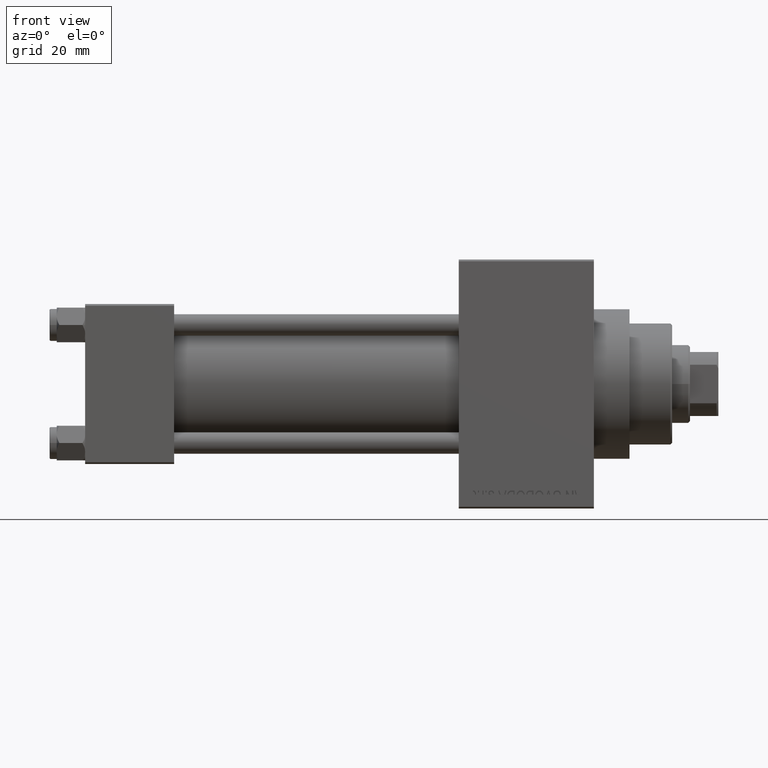
[diagram: clean part render]
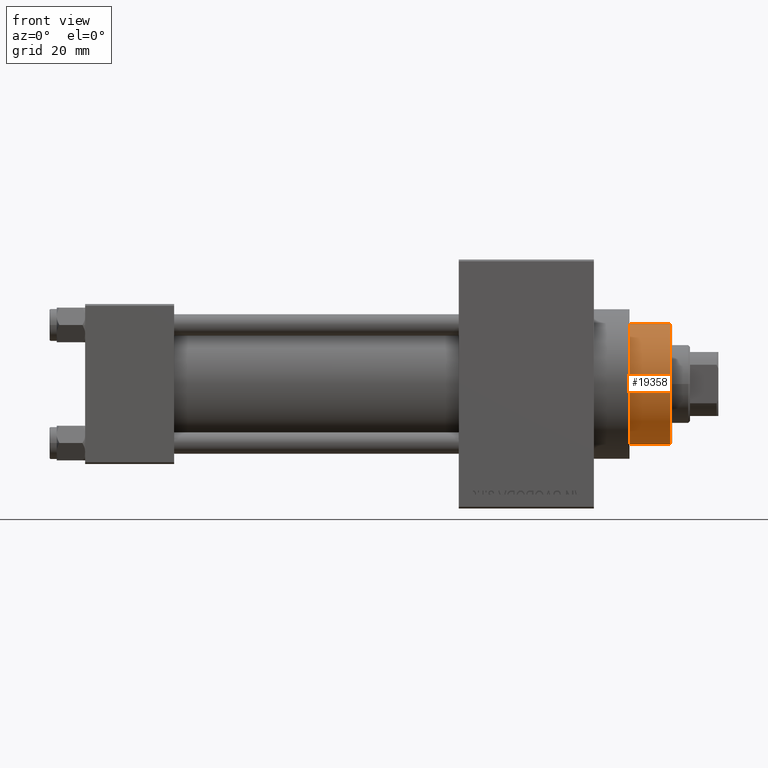
[diagram: same view with one face highlighted and labeled with its STEP entity id]
A machine part, front view. The second image highlights one B-rep face of the part: STEP entity #19358.
In plain terms, the highlighted cylindrical surface (partial cylindrical patch) has radius 17 mm, axis along (-1, 0, 0).
Its self-contained STEP definition (entity closure, byte-faithful):
#214 = AXIS2_PLACEMENT_3D ( 'NONE', #21256, #35797, #28875 ) ;
#926 = ORIENTED_EDGE ( 'NONE', *, *, #42260, .T. ) ;
#2860 = DIRECTION ( 'NONE',  ( 1.000000000000000000, 0.000000000000000000, 0.000000000000000000 ) ) ;
#7062 = EDGE_CURVE ( 'NONE', #8949, #9264, #28103, .T. ) ;
#7305 = VERTEX_POINT ( 'NONE', #31375 ) ;
#7988 = VECTOR ( 'NONE', #18783, 1000.000000000000000 ) ;
#8949 = VERTEX_POINT ( 'NONE', #24262 ) ;
#9011 = AXIS2_PLACEMENT_3D ( 'NONE', #46152, #9896, #31833 ) ;
#9264 = VERTEX_POINT ( 'NONE', #25503 ) ;
#9896 = DIRECTION ( 'NONE',  ( -0.000000000000000000, -0.000000000000000000, -1.000000000000000000 ) ) ;
#10937 = CIRCLE ( 'NONE', #21635, 17.00000000000000000 ) ;
#11688 = VECTOR ( 'NONE', #40126, 1000.000000000000000 ) ;
#12617 = CARTESIAN_POINT ( 'NONE',  ( -17.00000000000000000, 0.000000000000000000, 54.76000000000001222 ) ) ;
#15774 = VERTEX_POINT ( 'NONE', #12617 ) ;
#18068 = CARTESIAN_POINT ( 'NONE',  ( 17.00000000000000000, 2.081899558550500280E-15, 55.26000000000000512 ) ) ;
#18783 = DIRECTION ( 'NONE',  ( -0.000000000000000000, -0.000000000000000000, -1.000000000000000000 ) ) ;
#19358 = ADVANCED_FACE ( 'NONE', ( #43504 ), #31598, .T. ) ;
#21020 = CARTESIAN_POINT ( 'NONE',  ( 0.000000000000000000, 0.000000000000000000, 43.25999999999999801 ) ) ;
#21256 = CARTESIAN_POINT ( 'NONE',  ( 0.000000000000000000, 0.000000000000000000, 54.76000000000001222 ) ) ;
#21545 = ORIENTED_EDGE ( 'NONE', *, *, #43118, .F. ) ;
#21635 = AXIS2_PLACEMENT_3D ( 'NONE', #21020, #35557, #2860 ) ;
#24262 = CARTESIAN_POINT ( 'NONE',  ( 17.00000000000000000, 2.081899558550500280E-15, 54.76000000000001222 ) ) ;
#25503 = CARTESIAN_POINT ( 'NONE',  ( 17.00000000000000000, 2.081899558550500280E-15, 43.25999999999999801 ) ) ;
#25826 = CARTESIAN_POINT ( 'NONE',  ( -17.00000000000000000, 0.000000000000000000, 55.26000000000000512 ) ) ;
#28103 = LINE ( 'NONE', #18068, #7988 ) ;
#28875 = DIRECTION ( 'NONE',  ( 1.000000000000000000, 0.000000000000000000, 0.000000000000000000 ) ) ;
#29828 = EDGE_LOOP ( 'NONE', ( #926, #37442, #46993, #21545 ) ) ;
#31375 = CARTESIAN_POINT ( 'NONE',  ( -17.00000000000000000, 0.000000000000000000, 43.25999999999999801 ) ) ;
#31598 = CYLINDRICAL_SURFACE ( 'NONE', #9011, 17.00000000000000000 ) ;
#31833 = DIRECTION ( 'NONE',  ( -1.000000000000000000, 0.000000000000000000, 0.000000000000000000 ) ) ;
#35557 = DIRECTION ( 'NONE',  ( 0.000000000000000000, 0.000000000000000000, 1.000000000000000000 ) ) ;
#35797 = DIRECTION ( 'NONE',  ( 0.000000000000000000, 0.000000000000000000, -1.000000000000000000 ) ) ;
#36311 = LINE ( 'NONE', #25826, #11688 ) ;
#37442 = ORIENTED_EDGE ( 'NONE', *, *, #7062, .T. ) ;
#40126 = DIRECTION ( 'NONE',  ( -0.000000000000000000, -0.000000000000000000, -1.000000000000000000 ) ) ;
#42260 = EDGE_CURVE ( 'NONE', #15774, #8949, #45177, .T. ) ;
#43118 = EDGE_CURVE ( 'NONE', #15774, #7305, #36311, .T. ) ;
#43504 = FACE_OUTER_BOUND ( 'NONE', #29828, .T. ) ;
#44055 = EDGE_CURVE ( 'NONE', #9264, #7305, #10937, .T. ) ;
#45177 = CIRCLE ( 'NONE', #214, 17.00000000000000000 ) ;
#46152 = CARTESIAN_POINT ( 'NONE',  ( 0.000000000000000000, 0.000000000000000000, 55.26000000000000512 ) ) ;
#46993 = ORIENTED_EDGE ( 'NONE', *, *, #44055, .T. ) ;